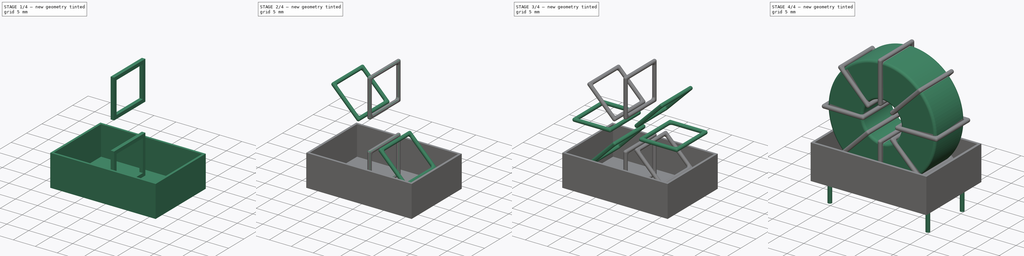
[diagram: build sequence overview — one tinted view per stage of 4, left to right]
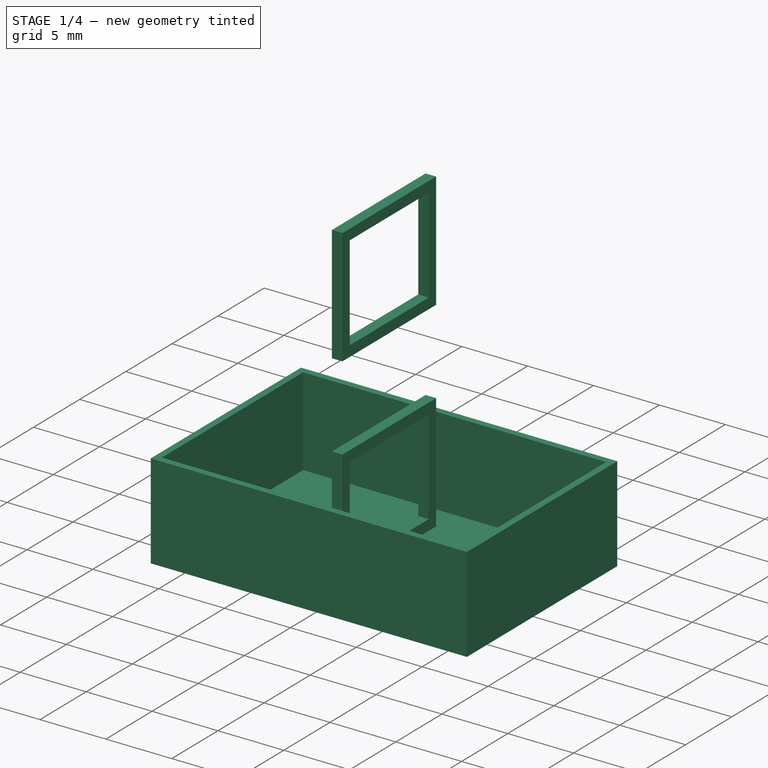
[diagram: stage 1 of 4 — iso view after this stage's code; geometry added in this stage tinted green]
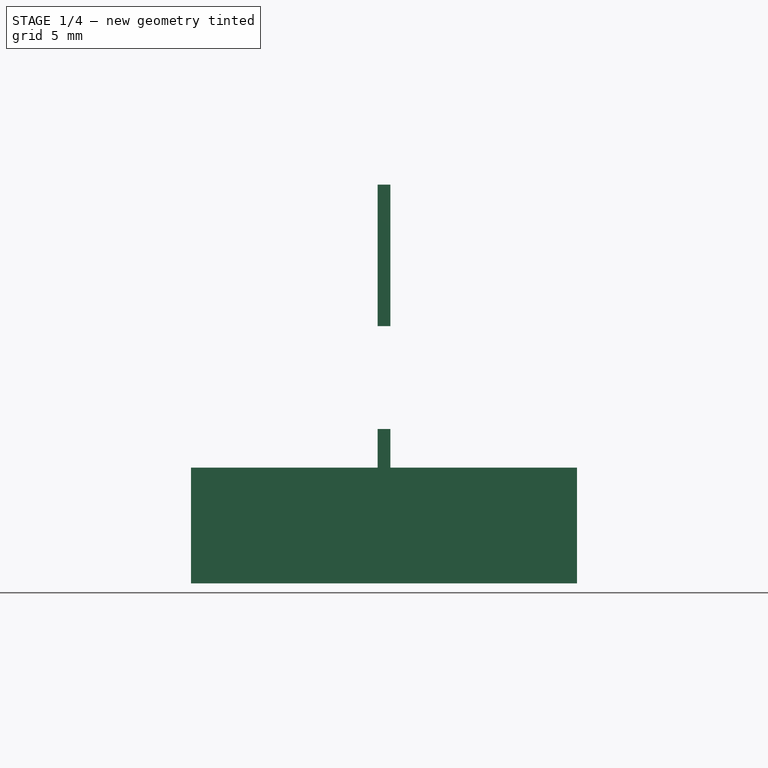
[diagram: stage 1 of 4 — front view after this stage's code; geometry added in this stage tinted green]
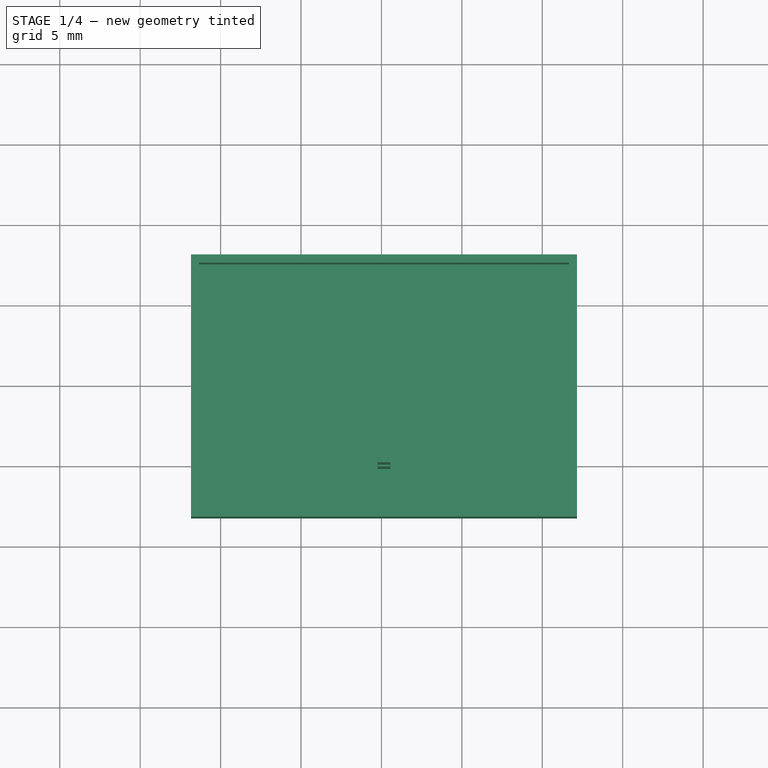
[diagram: stage 1 of 4 — top view after this stage's code; geometry added in this stage tinted green]
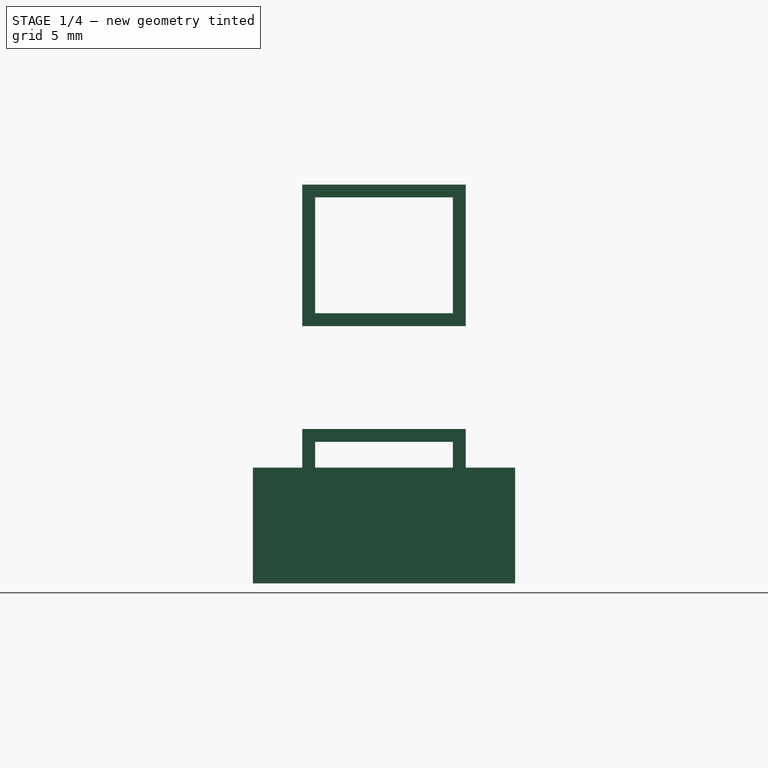
[diagram: stage 1 of 4 — right view after this stage's code; geometry added in this stage tinted green]
FCSTD DOCUMENT  (FreeCAD 0.16R6703 (Git))
Label: L_CommonModeChoke_Toroid_Vertical_L24.0mm_W16.3mm_Px10.16mm_Py20.32mm_muRATA_5200series
License: All rights reserved
LicenseURL: http://en.wikipedia.org/wiki/All_rights_reserved
objects: Sketcher::SketchObject×8, PartDesign::Pad×8, PartDesign::Fillet×5, Spreadsheet::Sheet×1
note: 29 computed .brp shape members not serialized (recipe doc carries the construction recipe); baked Part::Feature solids carry a one-line shape summary decoded from their .brp

FEATURE [Sketcher::SketchObject] Sketch006
  Placement = pos=(10.16,0,13.3) rot=(0.707107,0,0.707107;3.14159rad)
  expr: Placement.Base.x = Spreadsheet.RMy / 2
  expr: Constraints[18] = Spreadsheet.d_wire
  expr: Constraints[16] = Spreadsheet.d_wire
  expr: Constraints[19] = Spreadsheet.d_wire
  expr: Constraints[17] = Spreadsheet.d_wire
  expr: Placement.Base.y = -1 * (Spreadsheet.RMx - Spreadsheet.Wy) / 2
  expr: Constraints[21] = (Spreadsheet.Wx - Spreadsheet.WW) / 2 - Spreadsheet.d_wire
  expr: Constraints[22] = Spreadsheet.Wx / 2 - Spreadsheet.d_wire
  expr: Constraints[43] = Spreadsheet.d_wire
  expr: Constraints[48] = Spreadsheet.Wx - Spreadsheet.d_wire * 2
  expr: Constraints[49] = Spreadsheet.Wy
  expr: Placement.Base.z = Spreadsheet.Wx / 2 + Spreadsheet.d_wire + 0.5
  sketch-geometry (16):
    g0: LineSegment StartX=-3.2 StartY=0 StartZ=0 EndX=-12 EndY=0 EndZ=0
    g1: LineSegment StartX=-12 StartY=0 StartZ=0 EndX=-12 EndY=10.16 EndZ=0
    g2: LineSegment StartX=-12 StartY=10.16 StartZ=0 EndX=-3.2 EndY=10.16 EndZ=0
    g3: LineSegment StartX=-3.2 StartY=10.16 StartZ=0 EndX=-3.2 EndY=0 EndZ=0
    g4: LineSegment StartX=-11.2 StartY=9.36 StartZ=0 EndX=-4 EndY=9.36 EndZ=0
    g5: LineSegment StartX=-4 StartY=9.36 StartZ=0 EndX=-4 EndY=0.8 EndZ=0
    g6: LineSegment StartX=-4 StartY=0.8 StartZ=0 EndX=-11.2 EndY=0.8 EndZ=0
    g7: LineSegment StartX=-11.2 StartY=0.8 StartZ=0 EndX=-11.2 EndY=9.36 EndZ=0
    g8: LineSegment StartX=3.2 StartY=10.16 StartZ=0 EndX=12 EndY=10.16 EndZ=0
    g9: LineSegment StartX=12 StartY=10.16 StartZ=0 EndX=12 EndY=0 EndZ=0
    g10: LineSegment StartX=12 StartY=0 StartZ=0 EndX=3.2 EndY=0 EndZ=0
    g11: LineSegment StartX=3.2 StartY=0 StartZ=0 EndX=3.2 EndY=10.16 EndZ=0
    g12: LineSegment StartX=4 StartY=9.36 StartZ=0 EndX=11.2 EndY=9.36 EndZ=0
    g13: LineSegment StartX=11.2 StartY=9.36 StartZ=0 EndX=11.2 EndY=0.8 EndZ=0
    g14: LineSegment StartX=11.2 StartY=0.8 StartZ=0 EndX=4 EndY=0.8 EndZ=0
    g15: LineSegment StartX=4 StartY=0.8 StartZ=0 EndX=4 EndY=9.36 EndZ=0
  constraints (50):
    c: Horizontal(g0)
    c: Coincident(g1,g0)
    c: Vertical(g1)
    c: Coincident(g2,g1)
    c: Horizontal(g2)
    c: Coincident(g3,g2)
    c: Coincident(g3,g0)
    c: Vertical(g3)
    c: Coincident(g4,g5)
    c: Coincident(g5,g6)
    c: Coincident(g6,g7)
    c: Coincident(g7,g4)
    c: Horizontal(g4)
    c: Horizontal(g6)
    c: Vertical(g5)
    c: Vertical(g7)
    c: DistanceX(g1,g4) = 0.8
    c: DistanceY(g4,g1) = 0.8
    c: DistanceX(g5,g0) = 0.8
    c: DistanceY(g0,g5) = 0.8
    c: DistanceY(g-1,g0) = 0
    c: DistanceX(g6,g6) = 7.2
    c: DistanceX(g6,g-1) = 11.2
    c: Coincident(g8,g9)
    c: Coincident(g9,g10)
    c: Coincident(g10,g11)
    c: Coincident(g11,g8)
    c: Horizontal(g8)
    c: Horizontal(g10)
    c: Vertical(g9)
    c: Vertical(g11)
    c: Coincident(g12,g13)
    c: Coincident(g13,g14)
    c: Coincident(g14,g15)
    c: Coincident(g15,g12)
    c: Horizontal(g12)
    c: Horizontal(g14)
    c: Vertical(g13)
    c: Vertical(g15)
    c: DistanceY(g8,g2) = 0
    c: DistanceY(g10,g0) = 0
    c: DistanceY(g14,g5) = 0
    c: DistanceY(g12,g4) = 0
    c: DistanceX(g8,g12) = 0.8
    c: Equal(g8,g2)
    c: Equal(g12,g4)
    c: Equal(g9,g1)
    c: Equal(g13,g7)
    c: DistanceX(g4,g12) = 22.4
    c: DistanceY(g0,g1) = 10.16
FEATURE [PartDesign::Pad] Pad005
  Length = 0.8
  Length2 = 100
  Midplane = true
  Placement = pos=(10.16,0,13.3) rot=(0.707107,0,0.707107;3.14159rad)
  Sketch = -> Sketch006
  Type = 0
  expr: Length = Spreadsheet.d_wire
FEATURE [Sketcher::SketchObject] Sketch007
  Placement = pos=(10.16,0,0.5) rot=(0,0,1;0rad)
  expr: Placement.Base.x = Spreadsheet.RMy / 2
  expr: Placement.Base.z = 0.5
  expr: Constraints[11] = Spreadsheet.iWx / 2
  expr: Constraints[10] = (Spreadsheet.iWy - Spreadsheet.RMx) / 2
  expr: Constraints[9] = Spreadsheet.iWy
  expr: Constraints[8] = Spreadsheet.iWx
  sketch-geometry (4):
    g0: LineSegment StartX=-12 StartY=3.07 StartZ=0 EndX=12 EndY=3.07 EndZ=0
    g1: LineSegment StartX=12 StartY=3.07 StartZ=0 EndX=12 EndY=-13.23 EndZ=0
    g2: LineSegment StartX=12 StartY=-13.23 StartZ=0 EndX=-12 EndY=-13.23 EndZ=0
    g3: LineSegment StartX=-12 StartY=-13.23 StartZ=0 EndX=-12 EndY=3.07 EndZ=0
  constraints (12):
    c: Coincident(g0,g1)
    c: Coincident(g1,g2)
    c: Coincident(g2,g3)
    c: Coincident(g3,g0)
    c: Horizontal(g0)
    c: Horizontal(g2)
    c: Vertical(g1)
    c: Vertical(g3)
    c: DistanceX(g0,g0) = 24
    c: DistanceY(g3,g3) = 16.3
    c: DistanceY(g-1,g0) = 3.07
    c: DistanceX(g0,g-1) = 12
FEATURE [PartDesign::Pad] Pad006
  Length = 0.5
  Length2 = 100
  Placement = pos=(10.16,0,0.5) rot=(0,0,1;0rad)
  Sketch = -> Sketch007
  Type = 0
FEATURE [Sketcher::SketchObject] Sketch008
  Placement = pos=(10.16,0,0.5) rot=(0,0,1;0rad)
  expr: Placement.Base.x = Spreadsheet.RMy / 2
  expr: Constraints[8] = Spreadsheet.iWx
  expr: Constraints[9] = Spreadsheet.iWy
  expr: Constraints[10] = (Spreadsheet.iWy - Spreadsheet.RMx) / 2
  expr: Placement.Base.z = 0.5
  expr: Constraints[21] = 0.5
  expr: Constraints[11] = Spreadsheet.iWx / 2
  sketch-geometry (8):
    g0: LineSegment StartX=-12 StartY=3.07 StartZ=0 EndX=12 EndY=3.07 EndZ=0
    g1: LineSegment StartX=12 StartY=3.07 StartZ=0 EndX=12 EndY=-13.23 EndZ=0
    g2: LineSegment StartX=12 StartY=-13.23 StartZ=0 EndX=-12 EndY=-13.23 EndZ=0
    g3: LineSegment StartX=-12 StartY=-13.23 StartZ=0 EndX=-12 EndY=3.07 EndZ=0
    g4: LineSegment StartX=-11.5 StartY=2.57 StartZ=0 EndX=11.5 EndY=2.57 EndZ=0
    g5: LineSegment StartX=11.5 StartY=2.57 StartZ=0 EndX=11.5 EndY=-12.73 EndZ=0
    g6: LineSegment StartX=11.5 StartY=-12.73 StartZ=0 EndX=-11.5 EndY=-12.73 EndZ=0
    g7: LineSegment StartX=-11.5 StartY=-12.73 StartZ=0 EndX=-11.5 EndY=2.57 EndZ=0
  constraints (24):
    c: Coincident(g0,g1)
    c: Coincident(g1,g2)
    c: Coincident(g2,g3)
    c: Coincident(g3,g0)
    c: Horizontal(g0)
    c: Horizontal(g2)
    c: Vertical(g1)
    c: Vertical(g3)
    c: DistanceX(g0,g0) = 24
    c: DistanceY(g3,g3) = 16.3
    c: DistanceY(g-1,g0) = 3.07
    c: DistanceX(g0,g-1) = 12
    c: Coincident(g4,g5)
    c: Coincident(g5,g6)
    c: Coincident(g6,g7)
    c: Coincident(g7,g4)
    c: Horizontal(g4)
    c: Horizontal(g6)
    c: Vertical(g5)
    c: Vertical(g7)
    c: DistanceX(g5,g1) = 0.5
    c: DistanceY(g1,g5) = 0.5
    c: DistanceX(g0,g4) = 0.5
    c: DistanceY(g4,g0) = 0.5
FEATURE [PartDesign::Pad] Pad007
  Length = 7.2
  Length2 = 100
  Placement = pos=(10.16,0,0.5) rot=(0,0,1;0rad)
  Sketch = -> Sketch008
  Type = 0
  expr: Length = Spreadsheet.Wx * 0.3
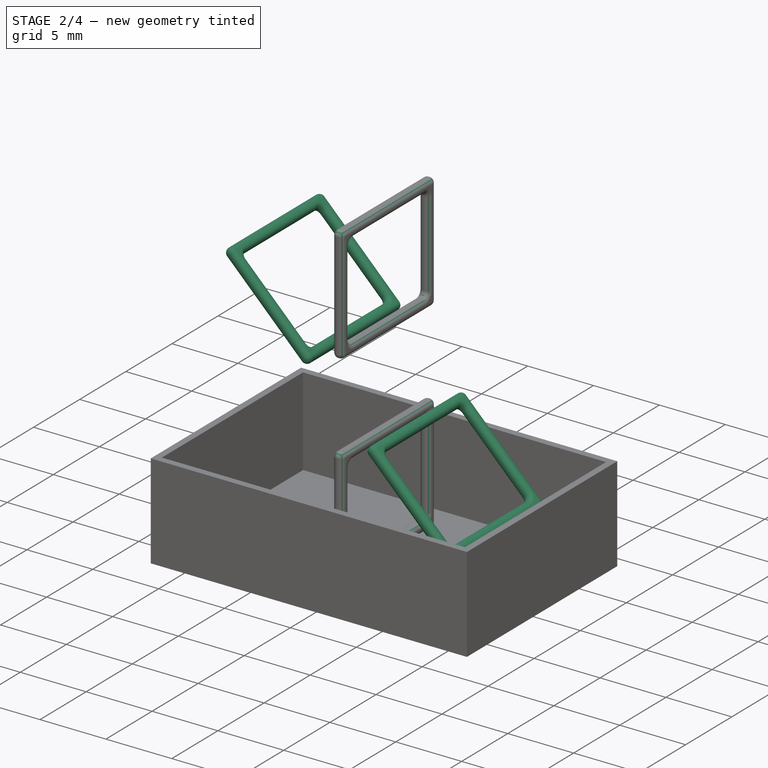
[diagram: stage 2 of 4 — iso view after this stage's code; geometry added in this stage tinted green]
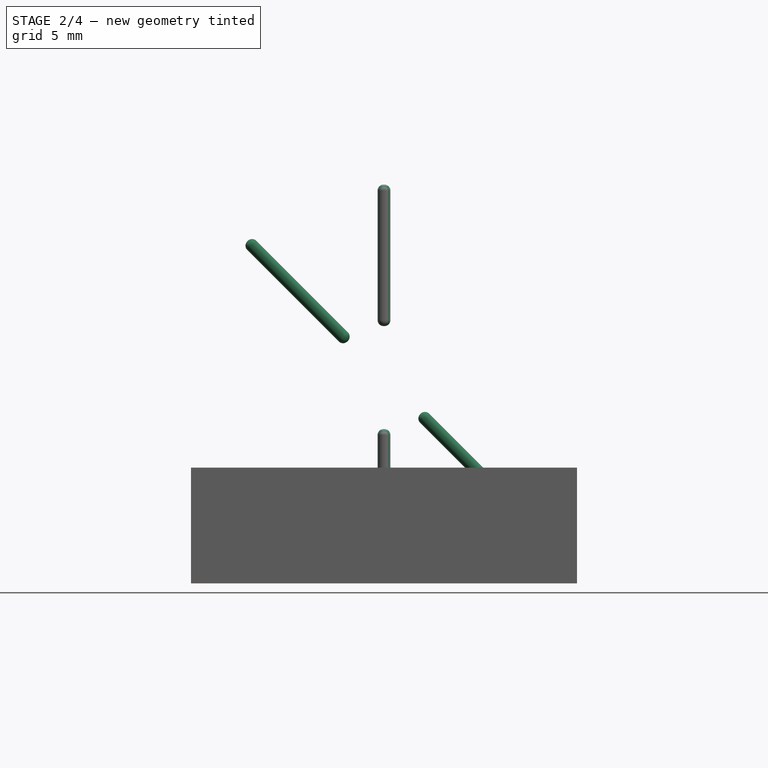
[diagram: stage 2 of 4 — front view after this stage's code; geometry added in this stage tinted green]
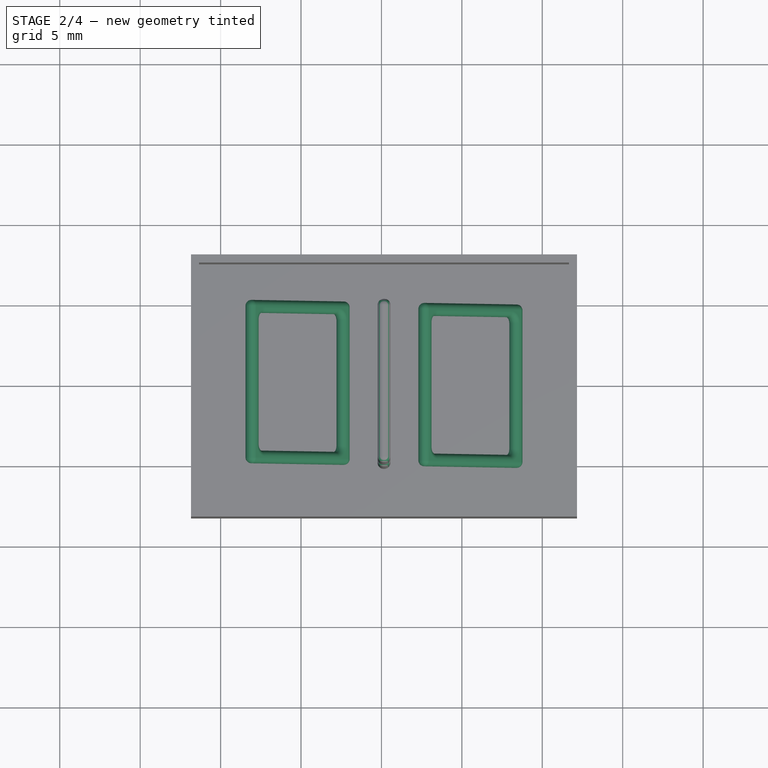
[diagram: stage 2 of 4 — top view after this stage's code; geometry added in this stage tinted green]
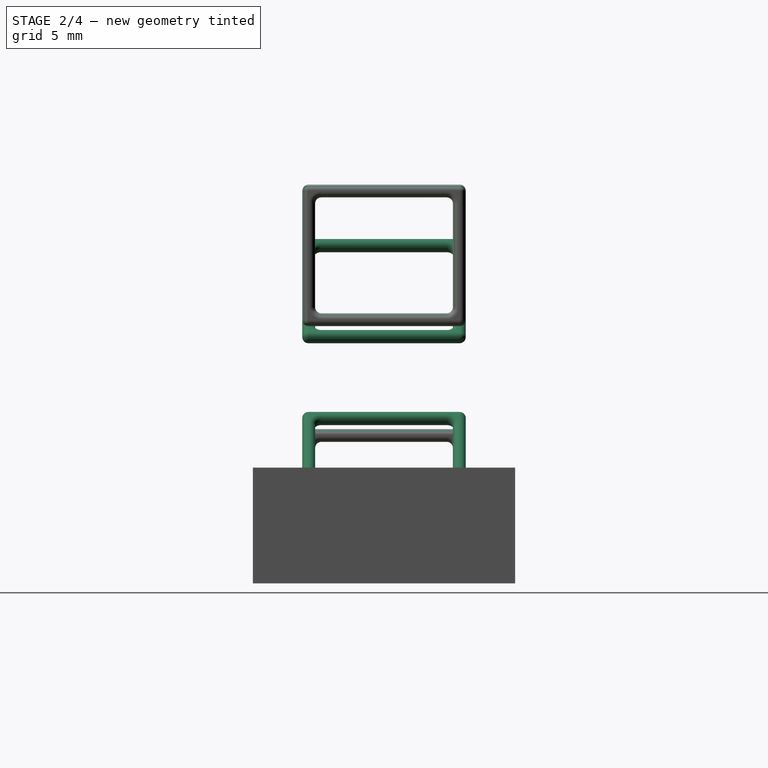
[diagram: stage 2 of 4 — right view after this stage's code; geometry added in this stage tinted green]
FEATURE [Sketcher::SketchObject] Sketch005
  Placement = pos=(10.16,0,13.3) rot=(0.92388,0,-0.382683;3.14159rad)
  expr: Placement.Base.x = Spreadsheet.RMy / 2
  expr: Constraints[18] = Spreadsheet.d_wire
  expr: Constraints[16] = Spreadsheet.d_wire
  expr: Constraints[19] = Spreadsheet.d_wire
  expr: Constraints[17] = Spreadsheet.d_wire
  expr: Placement.Base.y = -1 * (Spreadsheet.RMx - Spreadsheet.Wy) / 2
  expr: Constraints[21] = (Spreadsheet.Wx - Spreadsheet.WW) / 2 - Spreadsheet.d_wire
  expr: Constraints[22] = Spreadsheet.Wx / 2 - Spreadsheet.d_wire
  expr: Constraints[43] = Spreadsheet.d_wire
  expr: Constraints[48] = Spreadsheet.Wx - 2 * Spreadsheet.d_wire
  expr: Constraints[49] = Spreadsheet.Wy
  expr: Placement.Base.z = Spreadsheet.Wx / 2 + Spreadsheet.d_wire + 0.5
  sketch-geometry (16):
    g0: LineSegment StartX=-3.2 StartY=0 StartZ=0 EndX=-12 EndY=0 EndZ=0
    g1: LineSegment StartX=-12 StartY=0 StartZ=0 EndX=-12 EndY=10.16 EndZ=0
    g2: LineSegment StartX=-12 StartY=10.16 StartZ=0 EndX=-3.2 EndY=10.16 EndZ=0
    g3: LineSegment StartX=-3.2 StartY=10.16 StartZ=0 EndX=-3.2 EndY=0 EndZ=0
    g4: LineSegment StartX=-11.2 StartY=9.36 StartZ=0 EndX=-4 EndY=9.36 EndZ=0
    g5: LineSegment StartX=-4 StartY=9.36 StartZ=0 EndX=-4 EndY=0.8 EndZ=0
    g6: LineSegment StartX=-4 StartY=0.8 StartZ=0 EndX=-11.2 EndY=0.8 EndZ=0
    g7: LineSegment StartX=-11.2 StartY=0.8 StartZ=0 EndX=-11.2 EndY=9.36 EndZ=0
    g8: LineSegment StartX=3.2 StartY=10.16 StartZ=0 EndX=12 EndY=10.16 EndZ=0
    g9: LineSegment StartX=12 StartY=10.16 StartZ=0 EndX=12 EndY=0 EndZ=0
    g10: LineSegment StartX=12 StartY=0 StartZ=0 EndX=3.2 EndY=0 EndZ=0
    g11: LineSegment StartX=3.2 StartY=0 StartZ=0 EndX=3.2 EndY=10.16 EndZ=0
    g12: LineSegment StartX=4 StartY=9.36 StartZ=0 EndX=11.2 EndY=9.36 EndZ=0
    g13: LineSegment StartX=11.2 StartY=9.36 StartZ=0 EndX=11.2 EndY=0.8 EndZ=0
    g14: LineSegment StartX=11.2 StartY=0.8 StartZ=0 EndX=4 EndY=0.8 EndZ=0
    g15: LineSegment StartX=4 StartY=0.8 StartZ=0 EndX=4 EndY=9.36 EndZ=0
  constraints (50):
    c: Horizontal(g0)
    c: Coincident(g1,g0)
    c: Vertical(g1)
    c: Coincident(g2,g1)
    c: Horizontal(g2)
    c: Coincident(g3,g2)
    c: Coincident(g3,g0)
    c: Vertical(g3)
    c: Coincident(g4,g5)
    c: Coincident(g5,g6)
    c: Coincident(g6,g7)
    c: Coincident(g7,g4)
    c: Horizontal(g4)
    c: Horizontal(g6)
    c: Vertical(g5)
    c: Vertical(g7)
    c: DistanceX(g1,g4) = 0.8
    c: DistanceY(g4,g1) = 0.8
    c: DistanceX(g5,g0) = 0.8
    c: DistanceY(g0,g5) = 0.8
    c: DistanceY(g-1,g0) = 0
    c: DistanceX(g6,g6) = 7.2
    c: DistanceX(g6,g-1) = 11.2
    c: Coincident(g8,g9)
    c: Coincident(g9,g10)
    c: Coincident(g10,g11)
    c: Coincident(g11,g8)
    c: Horizontal(g8)
    c: Horizontal(g10)
    c: Vertical(g9)
    c: Vertical(g11)
    c: Coincident(g12,g13)
    c: Coincident(g13,g14)
    c: Coincident(g14,g15)
    c: Coincident(g15,g12)
    c: Horizontal(g12)
    c: Horizontal(g14)
    c: Vertical(g13)
    c: Vertical(g15)
    c: DistanceY(g8,g2) = 0
    c: DistanceY(g10,g0) = 0
    c: DistanceY(g14,g5) = 0
    c: DistanceY(g12,g4) = 0
    c: DistanceX(g8,g12) = 0.8
    c: Equal(g8,g2)
    c: Equal(g12,g4)
    c: Equal(g9,g1)
    c: Equal(g13,g7)
    c: DistanceX(g4,g12) = 22.4
    c: DistanceY(g0,g1) = 10.16
FEATURE [PartDesign::Pad] Pad004
  Length = 0.8
  Length2 = 100
  Midplane = true
  Placement = pos=(10.16,0,13.3) rot=(0.92388,0,-0.382683;3.14159rad)
  Sketch = -> Sketch005
  Type = 0
  expr: Length = Spreadsheet.d_wire
FEATURE [PartDesign::Fillet] Fillet003
  Base = -> Pad004 [Edge38,Edge41,Edge42,Edge43,Edge29,Edge32,Edge33,Edge34,Edge25,Edge35,Edge36,Edge13,Edge14,Edge15,Edge16,Edge17,Edge18,Edge19,Edge1,Edge2,Edge3,Edge4,Edge5,Edge6,Edge7,Edge37,Edge39,Edge40,Edge20,Edge23,Edge24,Edge21,Edge22,Edge8,Edge9,Edge10,Edge11,Edge12,Edge26,Edge27,+8 more]
  Placement = pos=(10.16,0,13.3) rot=(0.92388,0,-0.382683;3.14159rad)
  Radius = 0.376
  expr: Radius = Spreadsheet.d_wire * 0.47
FEATURE [PartDesign::Fillet] Fillet004
  Base = -> Pad005 [Edge38,Edge41,Edge42,Edge43,Edge29,Edge32,Edge33,Edge34,Edge25,Edge35,Edge36,Edge13,Edge14,Edge15,Edge16,Edge17,Edge18,Edge19,Edge1,Edge2,Edge3,Edge4,Edge5,Edge6,Edge7,Edge37,Edge39,Edge40,Edge20,Edge23,Edge24,Edge21,Edge22,Edge8,Edge9,Edge10,Edge11,Edge12,Edge26,Edge27,+8 more]
  Placement = pos=(10.16,0,13.3) rot=(0.707107,0,0.707107;3.14159rad)
  Radius = 0.376
  expr: Radius = Spreadsheet.d_wire * 0.47
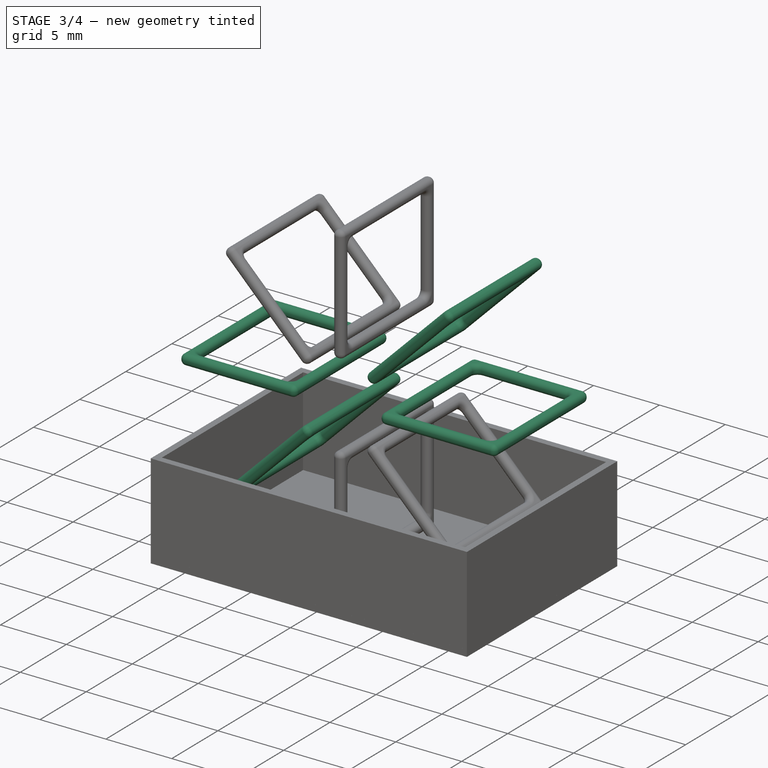
[diagram: stage 3 of 4 — iso view after this stage's code; geometry added in this stage tinted green]
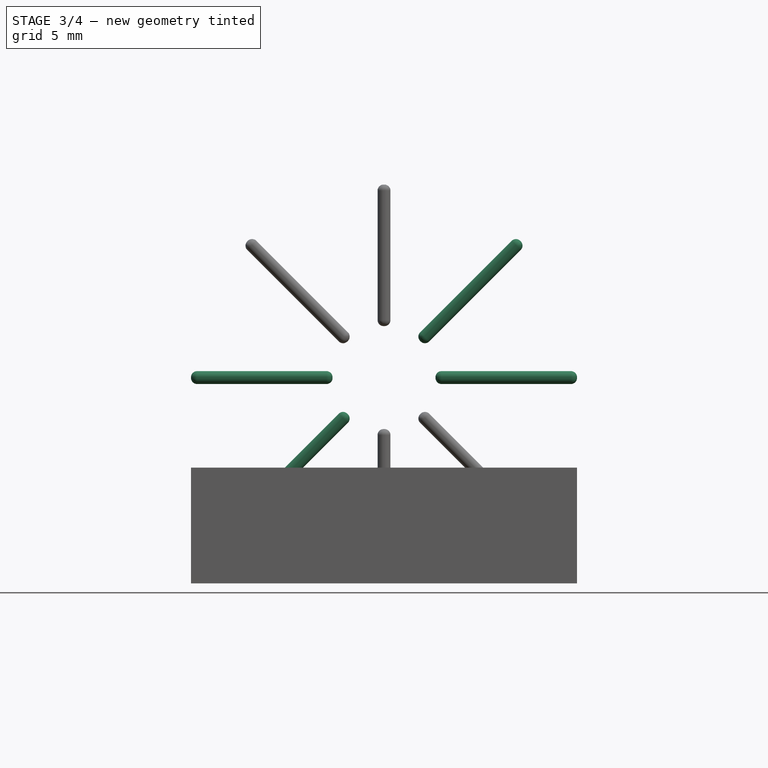
[diagram: stage 3 of 4 — front view after this stage's code; geometry added in this stage tinted green]
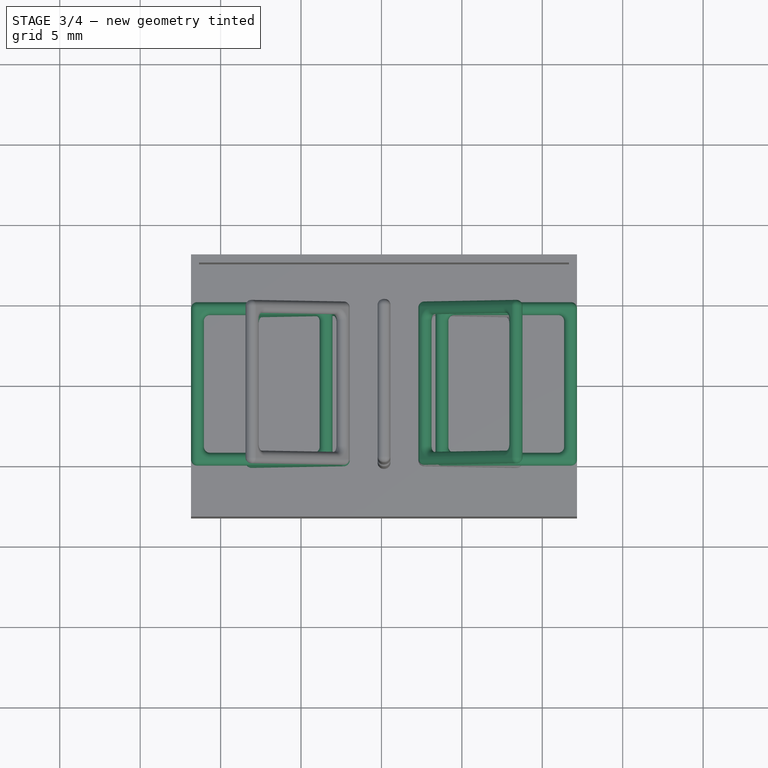
[diagram: stage 3 of 4 — top view after this stage's code; geometry added in this stage tinted green]
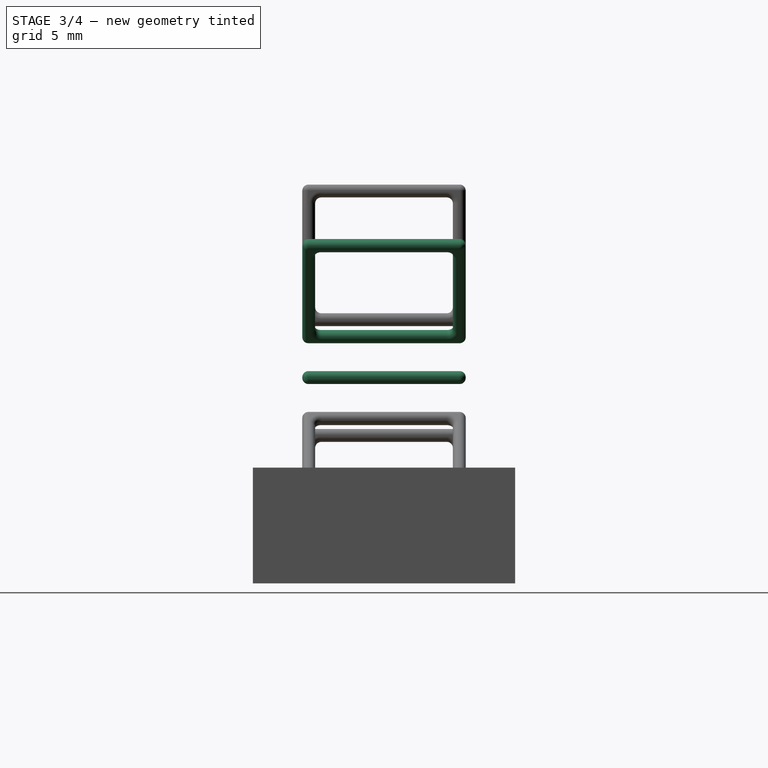
[diagram: stage 3 of 4 — right view after this stage's code; geometry added in this stage tinted green]
FEATURE [Sketcher::SketchObject] Sketch003
  Placement = pos=(10.16,0,13.3) rot=(1,0,0;3.14159rad)
  expr: Placement.Base.x = Spreadsheet.RMy / 2
  expr: Constraints[18] = Spreadsheet.d_wire
  expr: Constraints[16] = Spreadsheet.d_wire
  expr: Constraints[19] = Spreadsheet.d_wire
  expr: Constraints[17] = Spreadsheet.d_wire
  expr: Placement.Base.y = -1 * (Spreadsheet.RMx - Spreadsheet.Wy) / 2
  expr: Constraints[21] = (Spreadsheet.Wx - Spreadsheet.WW) / 2 - Spreadsheet.d_wire
  expr: Constraints[22] = Spreadsheet.Wx / 2 - Spreadsheet.d_wire
  expr: Constraints[43] = Spreadsheet.d_wire
  expr: Constraints[48] = Spreadsheet.Wx - Spreadsheet.d_wire * 2
  expr: Constraints[49] = Spreadsheet.Wy
  expr: Placement.Base.z = Spreadsheet.Wx / 2 + Spreadsheet.d_wire + 0.5
  sketch-geometry (16):
    g0: LineSegment StartX=-3.2 StartY=0 StartZ=0 EndX=-12 EndY=0 EndZ=0
    g1: LineSegment StartX=-12 StartY=0 StartZ=0 EndX=-12 EndY=10.16 EndZ=0
    g2: LineSegment StartX=-12 StartY=10.16 StartZ=0 EndX=-3.2 EndY=10.16 EndZ=0
    g3: LineSegment StartX=-3.2 StartY=10.16 StartZ=0 EndX=-3.2 EndY=0 EndZ=0
    g4: LineSegment StartX=-11.2 StartY=9.36 StartZ=0 EndX=-4 EndY=9.36 EndZ=0
    g5: LineSegment StartX=-4 StartY=9.36 StartZ=0 EndX=-4 EndY=0.8 EndZ=0
    g6: LineSegment StartX=-4 StartY=0.8 StartZ=0 EndX=-11.2 EndY=0.8 EndZ=0
    g7: LineSegment StartX=-11.2 StartY=0.8 StartZ=0 EndX=-11.2 EndY=9.36 EndZ=0
    g8: LineSegment StartX=3.2 StartY=10.16 StartZ=0 EndX=12 EndY=10.16 EndZ=0
    g9: LineSegment StartX=12 StartY=10.16 StartZ=0 EndX=12 EndY=0 EndZ=0
    g10: LineSegment StartX=12 StartY=0 StartZ=0 EndX=3.2 EndY=0 EndZ=0
    g11: LineSegment StartX=3.2 StartY=0 StartZ=0 EndX=3.2 EndY=10.16 EndZ=0
    g12: LineSegment StartX=4 StartY=9.36 StartZ=0 EndX=11.2 EndY=9.36 EndZ=0
    g13: LineSegment StartX=11.2 StartY=9.36 StartZ=0 EndX=11.2 EndY=0.8 EndZ=0
    g14: LineSegment StartX=11.2 StartY=0.8 StartZ=0 EndX=4 EndY=0.8 EndZ=0
    g15: LineSegment StartX=4 StartY=0.8 StartZ=0 EndX=4 EndY=9.36 EndZ=0
  constraints (50):
    c: Horizontal(g0)
    c: Coincident(g1,g0)
    c: Vertical(g1)
    c: Coincident(g2,g1)
    c: Horizontal(g2)
    c: Coincident(g3,g2)
    c: Coincident(g3,g0)
    c: Vertical(g3)
    c: Coincident(g4,g5)
    c: Coincident(g5,g6)
    c: Coincident(g6,g7)
    c: Coincident(g7,g4)
    c: Horizontal(g4)
    c: Horizontal(g6)
    c: Vertical(g5)
    c: Vertical(g7)
    c: DistanceX(g1,g4) = 0.8
    c: DistanceY(g4,g1) = 0.8
    c: DistanceX(g5,g0) = 0.8
    c: DistanceY(g0,g5) = 0.8
    c: DistanceY(g-1,g0) = 0
    c: DistanceX(g6,g6) = 7.2
    c: DistanceX(g6,g-1) = 11.2
    c: Coincident(g8,g9)
    c: Coincident(g9,g10)
    c: Coincident(g10,g11)
    c: Coincident(g11,g8)
    c: Horizontal(g8)
    c: Horizontal(g10)
    c: Vertical(g9)
    c: Vertical(g11)
    c: Coincident(g12,g13)
    c: Coincident(g13,g14)
    c: Coincident(g14,g15)
    c: Coincident(g15,g12)
    c: Horizontal(g12)
    c: Horizontal(g14)
    c: Vertical(g13)
    c: Vertical(g15)
    c: DistanceY(g8,g2) = 0
    c: DistanceY(g10,g0) = 0
    c: DistanceY(g14,g5) = 0
    c: DistanceY(g12,g4) = 0
    c: DistanceX(g8,g12) = 0.8
    c: Equal(g8,g2)
    c: Equal(g12,g4)
    c: Equal(g9,g1)
    c: Equal(g13,g7)
    c: DistanceX(g4,g12) = 22.4
    c: DistanceY(g0,g1) = 10.16
FEATURE [PartDesign::Pad] Pad002
  Length = 0.8
  Length2 = 100
  Midplane = true
  Placement = pos=(10.16,0,13.3) rot=(1,0,0;3.14159rad)
  Sketch = -> Sketch003
  Type = 0
  expr: Length = Spreadsheet.d_wire
FEATURE [PartDesign::Fillet] Fillet001
  Base = -> Pad002 [Edge38,Edge41,Edge42,Edge43,Edge29,Edge32,Edge33,Edge34,Edge25,Edge35,Edge36,Edge13,Edge14,Edge15,Edge16,Edge17,Edge18,Edge19,Edge1,Edge2,Edge3,Edge4,Edge5,Edge6,Edge7,Edge37,Edge39,Edge40,Edge20,Edge23,Edge24,Edge21,Edge22,Edge8,Edge9,Edge10,Edge11,Edge12,Edge26,Edge27,+8 more]
  Placement = pos=(10.16,0,13.3) rot=(1,0,0;3.14159rad)
  Radius = 0.376
  expr: Radius = Spreadsheet.d_wire * 0.47
FEATURE [Sketcher::SketchObject] Sketch004
  Placement = pos=(10.16,0,13.3) rot=(0.92388,0,0.382683;3.14159rad)
  expr: Placement.Base.x = Spreadsheet.RMy / 2
  expr: Constraints[18] = Spreadsheet.d_wire
  expr: Constraints[16] = Spreadsheet.d_wire
  expr: Constraints[19] = Spreadsheet.d_wire
  expr: Constraints[17] = Spreadsheet.d_wire
  expr: Placement.Base.y = -1 * (Spreadsheet.RMx - Spreadsheet.Wy) / 2
  expr: Constraints[21] = (Spreadsheet.Wx - Spreadsheet.WW) / 2 - Spreadsheet.d_wire
  expr: Constraints[22] = Spreadsheet.Wx / 2 - Spreadsheet.d_wire
  expr: Constraints[43] = Spreadsheet.d_wire
  expr: Constraints[48] = Spreadsheet.Wx - 2 * Spreadsheet.d_wire
  expr: Constraints[49] = Spreadsheet.Wy
  expr: Placement.Base.z = Spreadsheet.Wx / 2 + Spreadsheet.d_wire + 0.5
  sketch-geometry (16):
    g0: LineSegment StartX=-3.2 StartY=0 StartZ=0 EndX=-12 EndY=0 EndZ=0
    g1: LineSegment StartX=-12 StartY=0 StartZ=0 EndX=-12 EndY=10.16 EndZ=0
    g2: LineSegment StartX=-12 StartY=10.16 StartZ=0 EndX=-3.2 EndY=10.16 EndZ=0
    g3: LineSegment StartX=-3.2 StartY=10.16 StartZ=0 EndX=-3.2 EndY=0 EndZ=0
    g4: LineSegment StartX=-11.2 StartY=9.36 StartZ=0 EndX=-4 EndY=9.36 EndZ=0
    g5: LineSegment StartX=-4 StartY=9.36 StartZ=0 EndX=-4 EndY=0.8 EndZ=0
    g6: LineSegment StartX=-4 StartY=0.8 StartZ=0 EndX=-11.2 EndY=0.8 EndZ=0
    g7: LineSegment StartX=-11.2 StartY=0.8 StartZ=0 EndX=-11.2 EndY=9.36 EndZ=0
    g8: LineSegment StartX=3.2 StartY=10.16 StartZ=0 EndX=12 EndY=10.16 EndZ=0
    g9: LineSegment StartX=12 StartY=10.16 StartZ=0 EndX=12 EndY=0 EndZ=0
    g10: LineSegment StartX=12 StartY=0 StartZ=0 EndX=3.2 EndY=0 EndZ=0
    g11: LineSegment StartX=3.2 StartY=0 StartZ=0 EndX=3.2 EndY=10.16 EndZ=0
    g12: LineSegment StartX=4 StartY=9.36 StartZ=0 EndX=11.2 EndY=9.36 EndZ=0
    g13: LineSegment StartX=11.2 StartY=9.36 StartZ=0 EndX=11.2 EndY=0.8 EndZ=0
    g14: LineSegment StartX=11.2 StartY=0.8 StartZ=0 EndX=4 EndY=0.8 EndZ=0
    g15: LineSegment StartX=4 StartY=0.8 StartZ=0 EndX=4 EndY=9.36 EndZ=0
  constraints (50):
    c: Horizontal(g0)
    c: Coincident(g1,g0)
    c: Vertical(g1)
    c: Coincident(g2,g1)
    c: Horizontal(g2)
    c: Coincident(g3,g2)
    c: Coincident(g3,g0)
    c: Vertical(g3)
    c: Coincident(g4,g5)
    c: Coincident(g5,g6)
    c: Coincident(g6,g7)
    c: Coincident(g7,g4)
    c: Horizontal(g4)
    c: Horizontal(g6)
    c: Vertical(g5)
    c: Vertical(g7)
    c: DistanceX(g1,g4) = 0.8
    c: DistanceY(g4,g1) = 0.8
    c: DistanceX(g5,g0) = 0.8
    c: DistanceY(g0,g5) = 0.8
    c: DistanceY(g-1,g0) = 0
    c: DistanceX(g6,g6) = 7.2
    c: DistanceX(g6,g-1) = 11.2
    c: Coincident(g8,g9)
    c: Coincident(g9,g10)
    c: Coincident(g10,g11)
    c: Coincident(g11,g8)
    c: Horizontal(g8)
    c: Horizontal(g10)
    c: Vertical(g9)
    c: Vertical(g11)
    c: Coincident(g12,g13)
    c: Coincident(g13,g14)
    c: Coincident(g14,g15)
    c: Coincident(g15,g12)
    c: Horizontal(g12)
    c: Horizontal(g14)
    c: Vertical(g13)
    c: Vertical(g15)
    c: DistanceY(g8,g2) = 0
    c: DistanceY(g10,g0) = 0
    c: DistanceY(g14,g5) = 0
    c: DistanceY(g12,g4) = 0
    c: DistanceX(g8,g12) = 0.8
    c: Equal(g8,g2)
    c: Equal(g12,g4)
    c: Equal(g9,g1)
    c: Equal(g13,g7)
    c: DistanceX(g4,g12) = 22.4
    c: DistanceY(g0,g1) = 10.16
FEATURE [PartDesign::Pad] Pad003
  Length = 0.8
  Length2 = 100
  Midplane = true
  Placement = pos=(10.16,0,13.3) rot=(0.92388,0,0.382683;3.14159rad)
  Sketch = -> Sketch004
  Type = 0
  expr: Length = Spreadsheet.d_wire
FEATURE [PartDesign::Fillet] Fillet002
  Base = -> Pad003 [Edge38,Edge41,Edge42,Edge43,Edge29,Edge32,Edge33,Edge34,Edge25,Edge35,Edge36,Edge13,Edge14,Edge15,Edge16,Edge17,Edge18,Edge19,Edge1,Edge2,Edge3,Edge4,Edge5,Edge6,Edge7,Edge37,Edge39,Edge40,Edge20,Edge23,Edge24,Edge21,Edge22,Edge8,Edge9,Edge10,Edge11,Edge12,Edge26,Edge27,+8 more]
  Placement = pos=(10.16,0,13.3) rot=(0.92388,0,0.382683;3.14159rad)
  Radius = 0.376
  expr: Radius = Spreadsheet.d_wire * 0.47
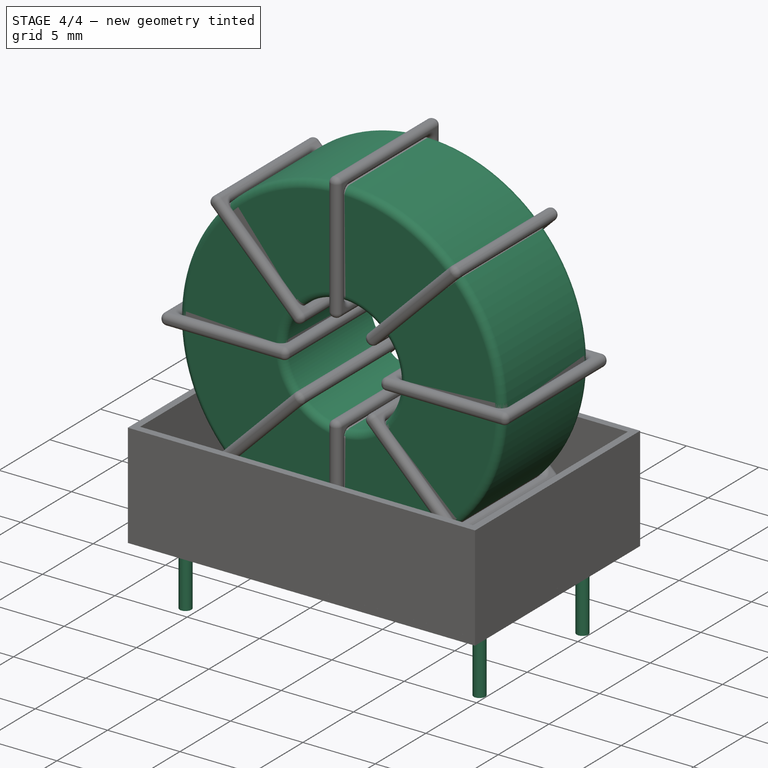
[diagram: stage 4 of 4 — iso view after this stage's code; geometry added in this stage tinted green]
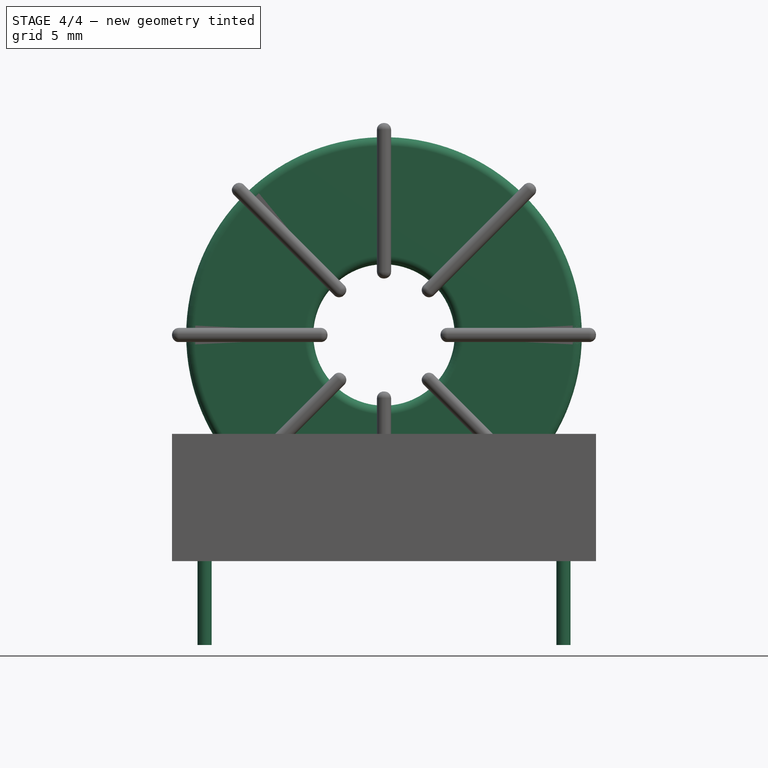
[diagram: stage 4 of 4 — front view after this stage's code; geometry added in this stage tinted green]
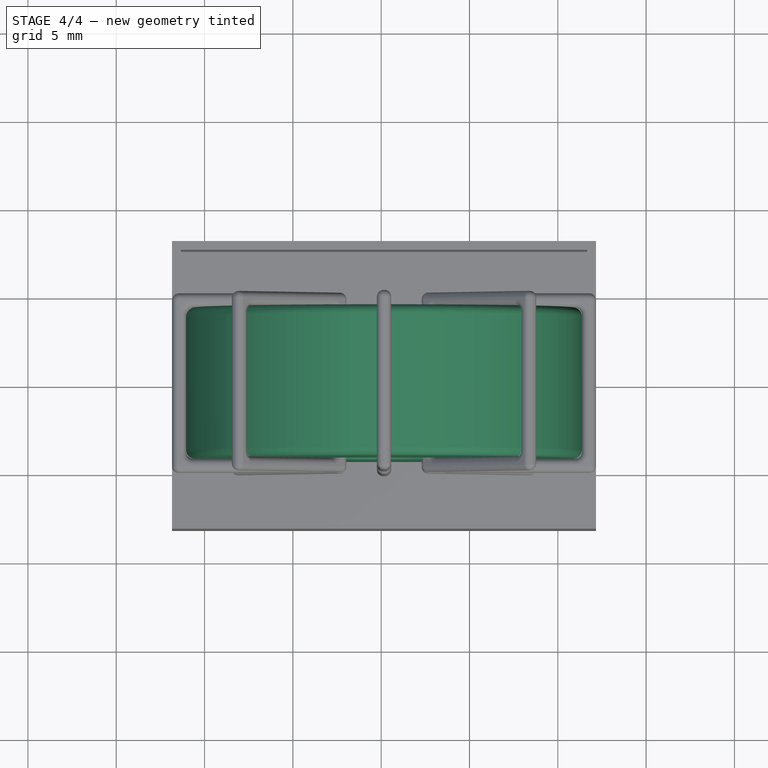
[diagram: stage 4 of 4 — top view after this stage's code; geometry added in this stage tinted green]
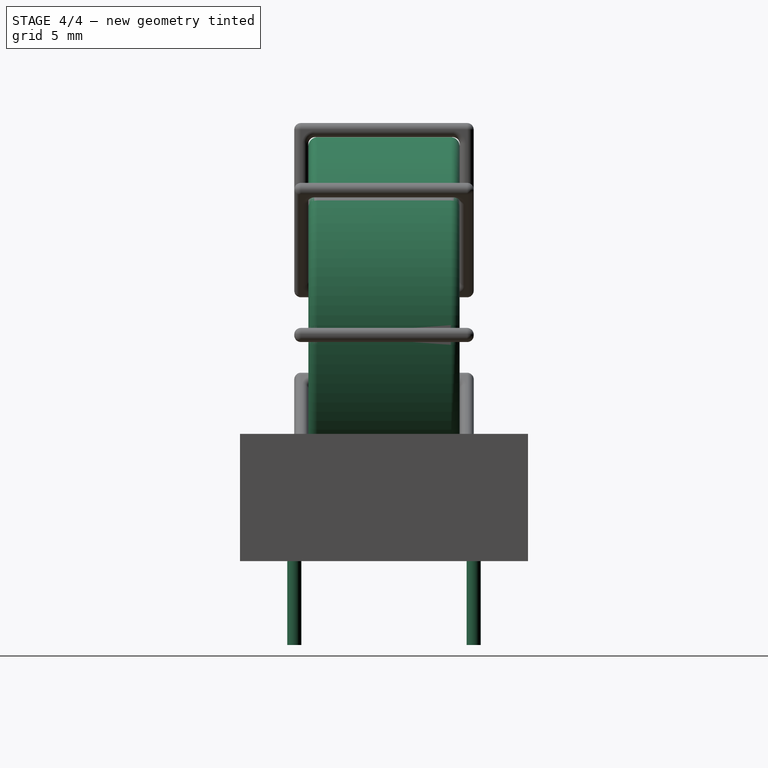
[diagram: stage 4 of 4 — right view after this stage's code; geometry added in this stage tinted green]
FEATURE [Spreadsheet::Sheet] Spreadsheet  label="dimensions"
  cells = A1=Wx; B1(Wx)=24; C1(WW)=8; D1(iWx)=24; A2=Wy; B2(Wy)=10.16; D2(iWy)=16.3; A3=RM; B3(RMx)=10.16; C3(RMy)=20.32; A4=d_wire; B4(d_wire)=0.8; A5=H; B5(H)=31; A6=offsetx; B6(offsetx)=1.84
FEATURE [Sketcher::SketchObject] Sketch
  Placement = pos=(10.16,-5.08,0) rot=(1,0,0;1.5708rad)
  expr: Placement.Base.x = Spreadsheet.RMy / 2
  expr: Constraints[4] = Spreadsheet.WW / 2
  expr: Placement.Base.y = -Spreadsheet.RMx / 2
  expr: Constraints[0] = Spreadsheet.Wx / 2 - Spreadsheet.d_wire
  expr: Constraints[2] = Spreadsheet.Wx / 2 + Spreadsheet.d_wire + 0.5
  sketch-geometry (2):
    g0: Circle CenterX=0 CenterY=13.3 CenterZ=0 NormalX=0 NormalY=0 NormalZ=1 Radius=11.2
    g1: Circle CenterX=0 CenterY=13.3 CenterZ=0 NormalX=0 NormalY=0 NormalZ=1 Radius=4
  constraints (5):
    c: Radius(g0) = 11.2
    c: DistanceX(g-1,g0) = 0
    c: DistanceY(g-1,g0) = 13.3
    c: Coincident(g1,g0)
    c: Radius(g1) = 4
FEATURE [PartDesign::Pad] Pad
  Length = 8.56
  Length2 = 100
  Midplane = true
  Placement = pos=(10.16,-5.08,0) rot=(1,0,0;1.5708rad)
  Sketch = -> Sketch
  Type = 0
  expr: Length = Spreadsheet.Wy - 2 * Spreadsheet.d_wire
FEATURE [Sketcher::SketchObject] Sketch001
  Placement = pos=(0,0,0.75) rot=(0,0,1;0rad)
  expr: Constraints[4] = Spreadsheet.RMy
  expr: Constraints[2] = -Spreadsheet.RMx
  expr: Constraints[1] = Spreadsheet.d_wire / 2
  sketch-geometry (4):
    g0: Circle CenterX=0 CenterY=0 CenterZ=0 NormalX=0 NormalY=0 NormalZ=1 Radius=0.4
    g1: Circle CenterX=20.32 CenterY=-10.16 CenterZ=0 NormalX=0 NormalY=0 NormalZ=1 Radius=0.4
    g2: Circle CenterX=0 CenterY=-10.16 CenterZ=0 NormalX=0 NormalY=0 NormalZ=1 Radius=0.4
    g3: Circle CenterX=20.32 CenterY=0 CenterZ=0 NormalX=0 NormalY=0 NormalZ=1 Radius=0.4
  constraints (11):
    c: Equal(g0,g1)
    c: Radius(g0) = 0.4
    c: DistanceY(g-1,g1) = -10.16
    c: Coincident(g0,g-1)
    c: DistanceX(g-1,g1) = 20.32
    c: PointOnObject(g2,g-2)
    c: DistanceY(g-1,g3) = 0
    c: DistanceY(g2,g1) = 0
    c: DistanceX(g3,g1) = 0
    c: Equal(g3,g2)
    c: Equal(g2,g1)
FEATURE [PartDesign::Pad] Pad001
  Length = 5
  Length2 = 0
  Placement = pos=(0,0,0.75) rot=(0,0,1;0rad)
  Reversed = true
  Sketch = -> Sketch001
  Type = 0
FEATURE [PartDesign::Fillet] Fillet
  Base = -> Pad [Edge6,Edge3,Edge2]
  Placement = pos=(10.16,-5.08,0) rot=(1,0,0;1.5708rad)
  Radius = 0.5
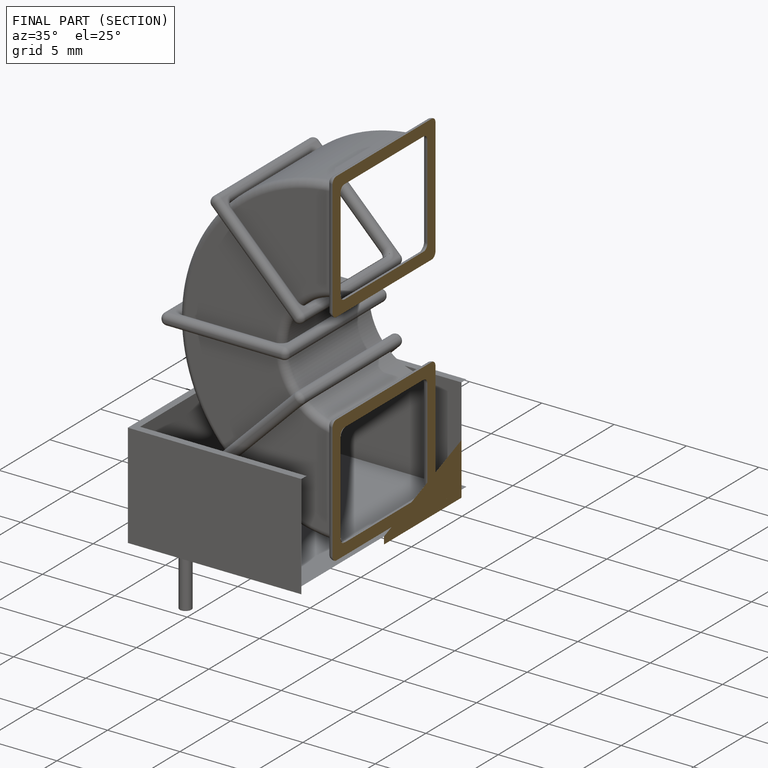
[diagram: finished part — half-section view (interior)]
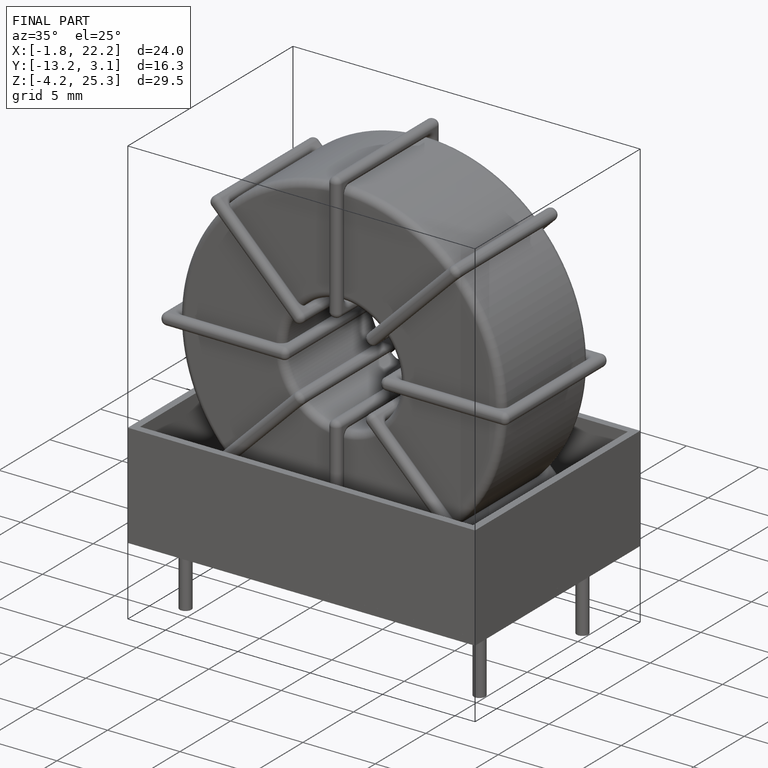
[diagram: finished part — iso view with bounding-box wireframe]
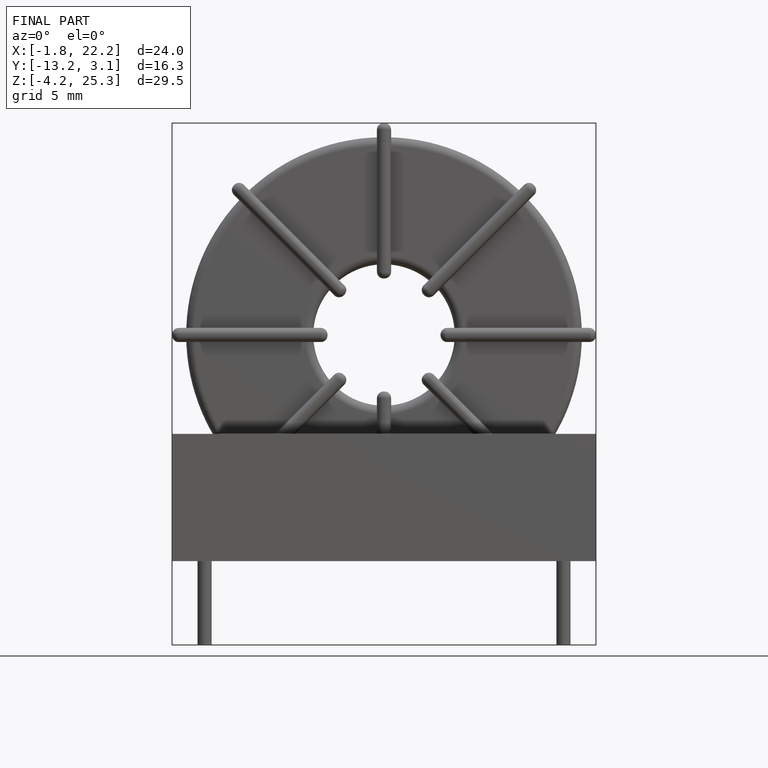
[diagram: finished part — front view with bounding-box wireframe]
